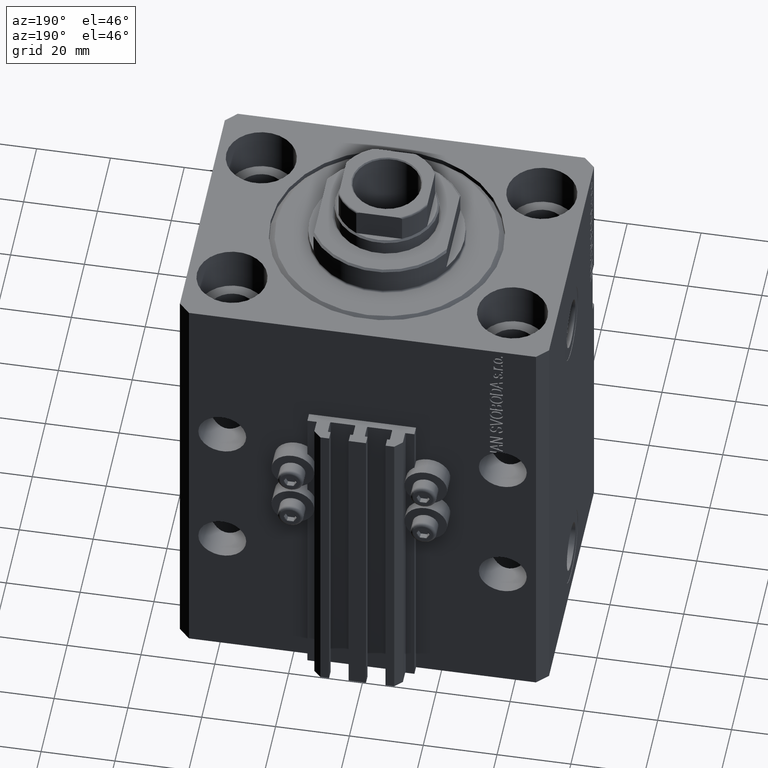
[diagram: clean part render]
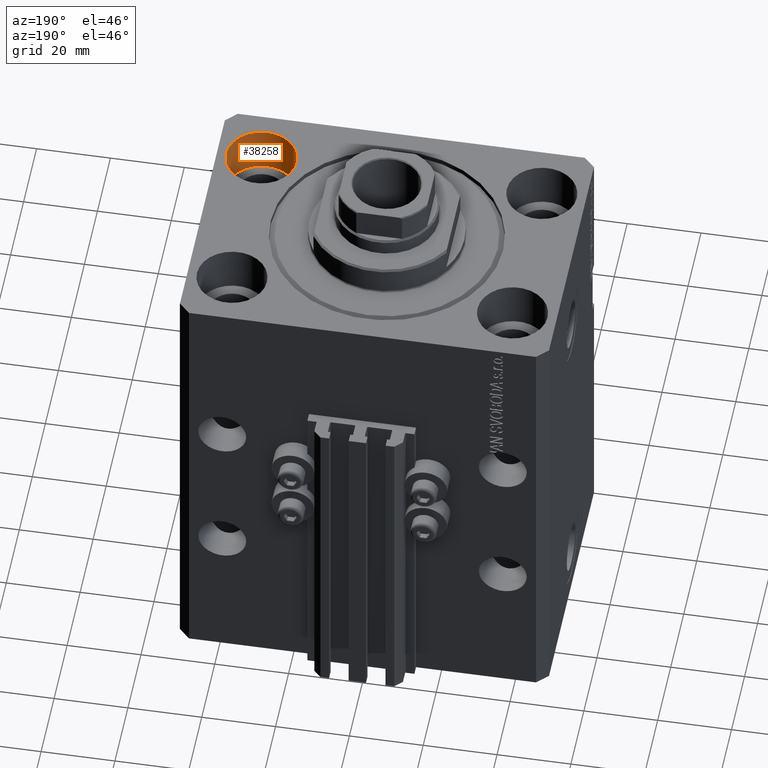
[diagram: same view with one face highlighted and labeled with its STEP entity id]
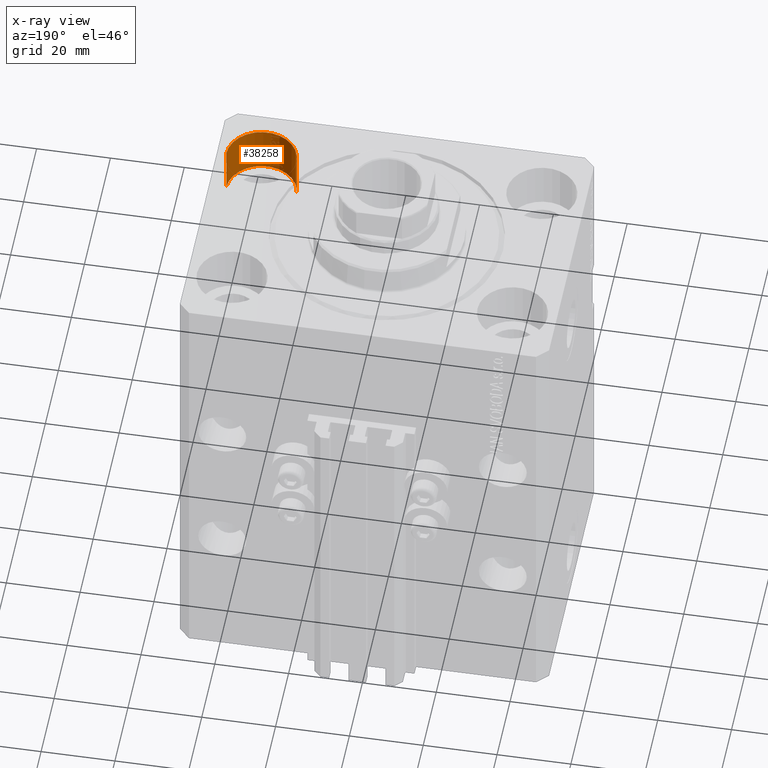
[diagram: x-ray of the same camera — body ghosted, the highlighted face saturated]
A machine part, auxiliary view. The second image highlights one B-rep face of the part: STEP entity #38258.
The next image is the same camera in x-ray: the body ghosted, the highlighted face saturated — about 0% of this face is hidden behind the body in this view.
In plain terms, the highlighted cylindrical surface (edge-blend (fillet) strip) has radius 9.5 mm, axis along (0, 0, 1).
Its self-contained STEP definition (entity closure, byte-faithful):
#1527 = LINE ( 'NONE', #12497, #41313 ) ;
#2493 = VERTEX_POINT ( 'NONE', #15315 ) ;
#2580 = DIRECTION ( 'NONE',  ( 0.000000000000000000, 0.000000000000000000, 1.000000000000000000 ) ) ;
#3282 = VECTOR ( 'NONE', #8274, 1000.000000000000000 ) ;
#5074 = CIRCLE ( 'NONE', #45528, 9.500000000000001776 ) ;
#5168 = DIRECTION ( 'NONE',  ( -0.000000000000000000, -0.000000000000000000, 1.000000000000000000 ) ) ;
#6197 = AXIS2_PLACEMENT_3D ( 'NONE', #17941, #2580, #9906 ) ;
#7035 = CARTESIAN_POINT ( 'NONE',  ( 47.50000000000000711, -22.50000000000000000, 0.000000000000000000 ) ) ;
#7442 = CYLINDRICAL_SURFACE ( 'NONE', #19133, 9.500000000000001776 ) ;
#8274 = DIRECTION ( 'NONE',  ( -0.000000000000000000, -0.000000000000000000, 1.000000000000000000 ) ) ;
#8795 = ORIENTED_EDGE ( 'NONE', *, *, #22893, .T. ) ;
#9906 = DIRECTION ( 'NONE',  ( 1.000000000000000000, 0.000000000000000000, 0.000000000000000000 ) ) ;
#10745 = CARTESIAN_POINT ( 'NONE',  ( 38.00000000000000711, -22.50000000000000000, -13.00000000000000000 ) ) ;
#12497 = CARTESIAN_POINT ( 'NONE',  ( 28.50000000000000355, -22.50000000000000000, -13.00000000000000000 ) ) ;
#15315 = CARTESIAN_POINT ( 'NONE',  ( 47.50000000000000711, -22.50000000000000000, -13.00000000000000000 ) ) ;
#15491 = EDGE_CURVE ( 'NONE', #36155, #17253, #31870, .T. ) ;
#17253 = VERTEX_POINT ( 'NONE', #7035 ) ;
#17829 = DIRECTION ( 'NONE',  ( 1.000000000000000000, 0.000000000000000000, 0.000000000000000000 ) ) ;
#17941 = CARTESIAN_POINT ( 'NONE',  ( 38.00000000000000711, -22.50000000000000000, 0.000000000000000000 ) ) ;
#18545 = DIRECTION ( 'NONE',  ( 0.000000000000000000, 0.000000000000000000, 1.000000000000000000 ) ) ;
#19133 = AXIS2_PLACEMENT_3D ( 'NONE', #22316, #37168, #19380 ) ;
#19380 = DIRECTION ( 'NONE',  ( 1.000000000000000000, 0.000000000000000000, 0.000000000000000000 ) ) ;
#19404 = EDGE_LOOP ( 'NONE', ( #46533, #8795, #41690, #48031 ) ) ;
#22316 = CARTESIAN_POINT ( 'NONE',  ( 38.00000000000000711, -22.50000000000000000, -13.00000000000000000 ) ) ;
#22893 = EDGE_CURVE ( 'NONE', #28061, #36155, #1527, .T. ) ;
#25235 = CARTESIAN_POINT ( 'NONE',  ( 28.50000000000000355, -22.50000000000000000, 0.000000000000000000 ) ) ;
#26443 = EDGE_CURVE ( 'NONE', #2493, #17253, #30946, .T. ) ;
#27301 = CARTESIAN_POINT ( 'NONE',  ( 47.50000000000000711, -22.50000000000000000, -13.00000000000000000 ) ) ;
#28061 = VERTEX_POINT ( 'NONE', #34177 ) ;
#30946 = LINE ( 'NONE', #27301, #3282 ) ;
#31870 = CIRCLE ( 'NONE', #6197, 9.500000000000001776 ) ;
#34177 = CARTESIAN_POINT ( 'NONE',  ( 28.50000000000000355, -22.50000000000000000, -13.00000000000000000 ) ) ;
#36155 = VERTEX_POINT ( 'NONE', #25235 ) ;
#36329 = EDGE_CURVE ( 'NONE', #28061, #2493, #5074, .T. ) ;
#37168 = DIRECTION ( 'NONE',  ( -0.000000000000000000, -0.000000000000000000, 1.000000000000000000 ) ) ;
#38258 = ADVANCED_FACE ( 'NONE', ( #40825 ), #7442, .F. ) ;
#40825 = FACE_OUTER_BOUND ( 'NONE', #19404, .T. ) ;
#41313 = VECTOR ( 'NONE', #5168, 1000.000000000000000 ) ;
#41690 = ORIENTED_EDGE ( 'NONE', *, *, #15491, .T. ) ;
#45528 = AXIS2_PLACEMENT_3D ( 'NONE', #10745, #18545, #17829 ) ;
#46533 = ORIENTED_EDGE ( 'NONE', *, *, #36329, .F. ) ;
#48031 = ORIENTED_EDGE ( 'NONE', *, *, #26443, .F. ) ;